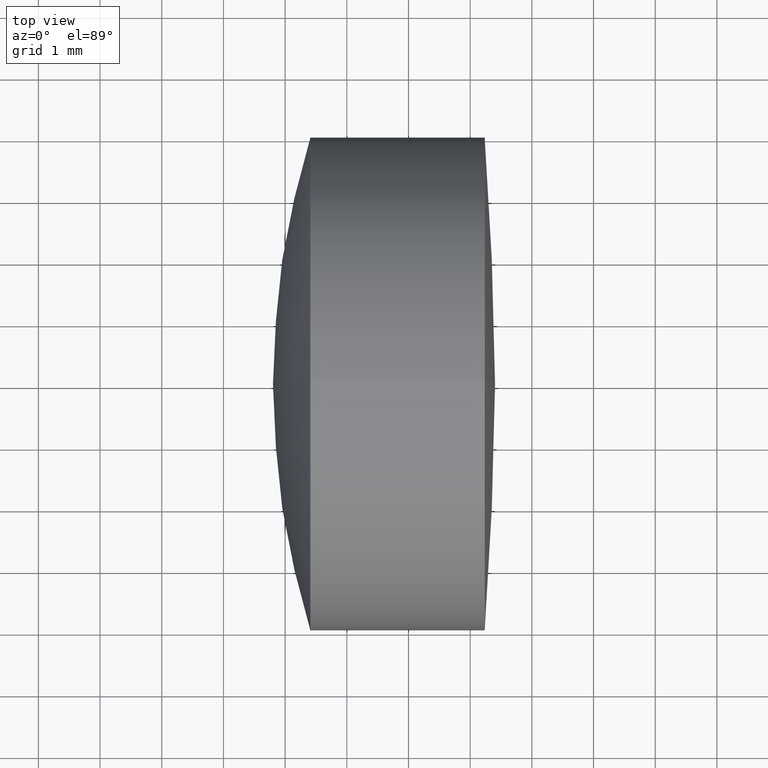
[diagram: clean part render]
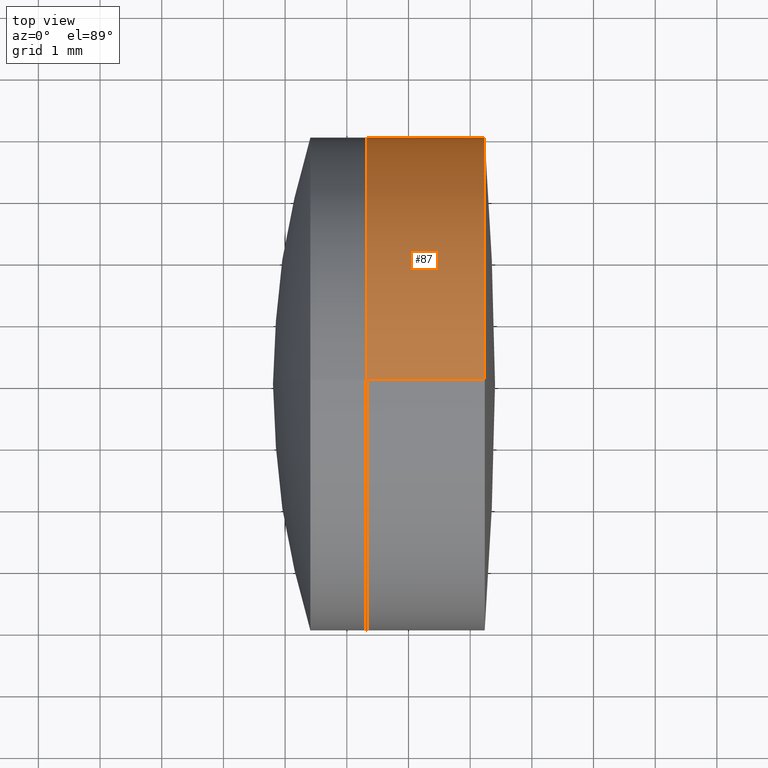
[diagram: same view with one face highlighted and labeled with its STEP entity id]
A machine part, top view. The second image highlights one B-rep face of the part: STEP entity #87.
In plain terms, the highlighted cylindrical surface (partial cylindrical patch) has radius 4 mm, axis along (-1, -0, -0).
Its self-contained STEP definition (entity closure, byte-faithful):
#20 = DIRECTION ( 'NONE',  ( -1.000000000000000000, -0.0000000000000000000, -0.0000000000000000000 ) ) ;
#24 = CARTESIAN_POINT ( 'NONE',  ( -0.5519199926577972300, 0.0000000000000000000, 3.999999999999998200 ) ) ;
#26 = DIRECTION ( 'NONE',  ( 0.0000000000000000000, 0.0000000000000000000, 1.000000000000000000 ) ) ;
#31 = VERTEX_POINT ( 'NONE', #191 ) ;
#33 = AXIS2_PLACEMENT_3D ( 'NONE', #266, #311, #34 ) ;
#34 = DIRECTION ( 'NONE',  ( 0.0000000000000000000, 0.0000000000000000000, 1.000000000000000000 ) ) ;
#36 = CYLINDRICAL_SURFACE ( 'NONE', #33, 3.999999999999998200 ) ;
#38 = ORIENTED_EDGE ( 'NONE', *, *, #289, .T. ) ;
#44 = VERTEX_POINT ( 'NONE', #93 ) ;
#45 = CIRCLE ( 'NONE', #46, 3.999999999999999100 ) ;
#46 = AXIS2_PLACEMENT_3D ( 'NONE', #71, #20, #327 ) ;
#55 = ORIENTED_EDGE ( 'NONE', *, *, #85, .T. ) ;
#71 = CARTESIAN_POINT ( 'NONE',  ( 267.3193874442736700, 0.0000000000000000000, 0.0000000000000000000 ) ) ;
#85 = EDGE_CURVE ( 'NONE', #158, #31, #157, .T. ) ;
#87 = ADVANCED_FACE ( 'NONE', ( #208 ), #36, .T. ) ;
#93 = CARTESIAN_POINT ( 'NONE',  ( 267.3193874442736700, 4.898587196589412800E-016, -4.000000000000000000 ) ) ;
#108 = VECTOR ( 'NONE', #119, 1000.000000000000000 ) ;
#118 = EDGE_CURVE ( 'NONE', #158, #198, #269, .T. ) ;
#119 = DIRECTION ( 'NONE',  ( -1.000000000000000000, -0.0000000000000000000, -0.0000000000000000000 ) ) ;
#123 = VECTOR ( 'NONE', #139, 1000.000000000000000 ) ;
#139 = DIRECTION ( 'NONE',  ( -1.000000000000000000, -0.0000000000000000000, -0.0000000000000000000 ) ) ;
#153 = DIRECTION ( 'NONE',  ( -1.000000000000000000, -0.0000000000000000000, -0.0000000000000000000 ) ) ;
#157 = CIRCLE ( 'NONE', #164, 3.999999999999998200 ) ;
#158 = VERTEX_POINT ( 'NONE', #240 ) ;
#164 = AXIS2_PLACEMENT_3D ( 'NONE', #255, #153, #26 ) ;
#191 = CARTESIAN_POINT ( 'NONE',  ( 269.2354164445880500, 4.898587196589410900E-016, -3.999999999999998200 ) ) ;
#198 = VERTEX_POINT ( 'NONE', #267 ) ;
#208 = FACE_OUTER_BOUND ( 'NONE', #315, .T. ) ;
#209 = ORIENTED_EDGE ( 'NONE', *, *, #275, .F. ) ;
#240 = CARTESIAN_POINT ( 'NONE',  ( 269.2354164445880500, 0.0000000000000000000, 3.999999999999998200 ) ) ;
#255 = CARTESIAN_POINT ( 'NONE',  ( 269.2354164445880500, 0.0000000000000000000, 0.0000000000000000000 ) ) ;
#256 = CARTESIAN_POINT ( 'NONE',  ( -0.5519199926577972300, 4.898587196589410900E-016, -3.999999999999998200 ) ) ;
#266 = CARTESIAN_POINT ( 'NONE',  ( -0.5519199926577972300, 0.0000000000000000000, 0.0000000000000000000 ) ) ;
#267 = CARTESIAN_POINT ( 'NONE',  ( 267.3193874442736700, 0.0000000000000000000, 4.000000000000000000 ) ) ;
#269 = LINE ( 'NONE', #24, #123 ) ;
#275 = EDGE_CURVE ( 'NONE', #198, #44, #45, .T. ) ;
#289 = EDGE_CURVE ( 'NONE', #31, #44, #328, .T. ) ;
#292 = ORIENTED_EDGE ( 'NONE', *, *, #118, .F. ) ;
#311 = DIRECTION ( 'NONE',  ( -1.000000000000000000, -0.0000000000000000000, -0.0000000000000000000 ) ) ;
#315 = EDGE_LOOP ( 'NONE', ( #55, #38, #209, #292 ) ) ;
#327 = DIRECTION ( 'NONE',  ( 0.0000000000000000000, 0.0000000000000000000, 1.000000000000000000 ) ) ;
#328 = LINE ( 'NONE', #256, #108 ) ;